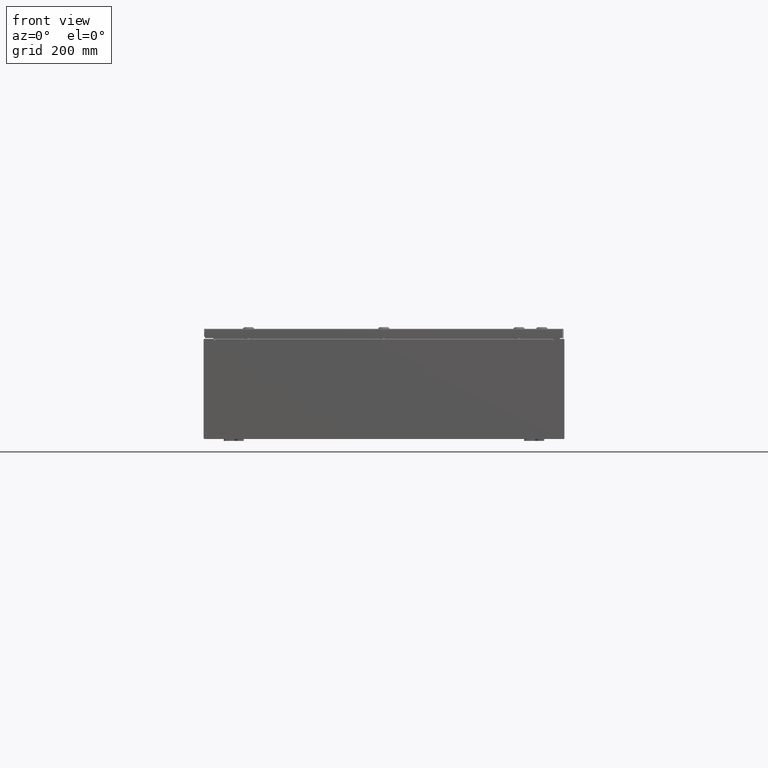
[diagram: clean part render]
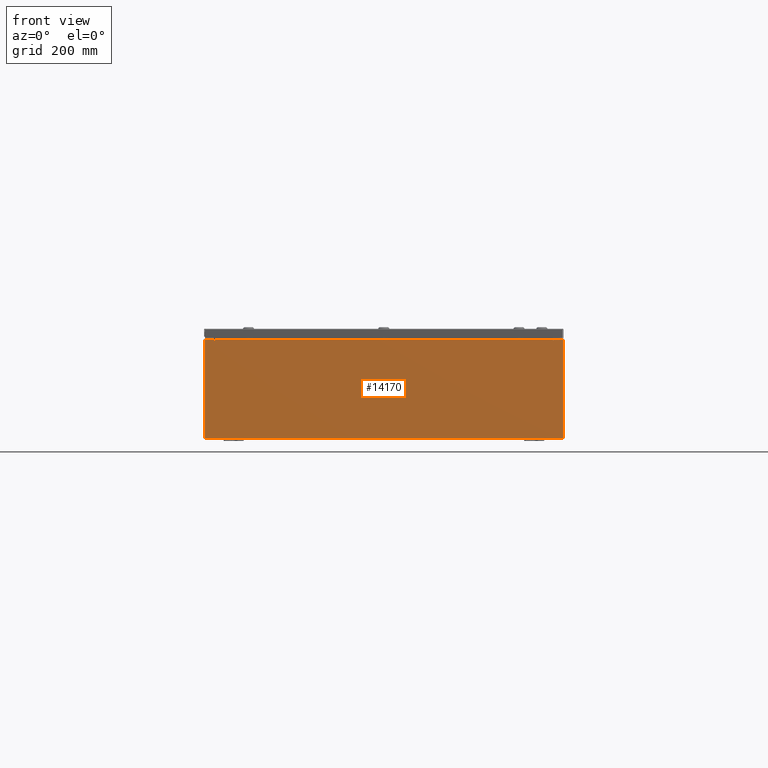
[diagram: same view with one face highlighted and labeled with its STEP entity id]
A machine part, front view. The second image highlights one B-rep face of the part: STEP entity #14170.
In plain terms, the highlighted planar face has unit normal (-0, 1, -0).
Its self-contained STEP definition (entity closure, byte-faithful):
#196 = CARTESIAN_POINT ( 'NONE',  ( -16.92454999999999600, 0.0000000000000000000, 4.925300000000000000 ) ) ;
#418 = VERTEX_POINT ( 'NONE', #46723 ) ;
#442 = EDGE_CURVE ( 'NONE', #418, #68996, #4440, .T. ) ;
#1141 = EDGE_CURVE ( 'NONE', #22360, #16746, #4373, .T. ) ;
#2148 = LINE ( 'NONE', #68562, #29015 ) ;
#2175 = ORIENTED_EDGE ( 'NONE', *, *, #47521, .F. ) ;
#3102 = AXIS2_PLACEMENT_3D ( 'NONE', #16738, #11930, #21178 ) ;
#4373 = CIRCLE ( 'NONE', #3102, 0.01867499999999949400 ) ;
#4412 = CARTESIAN_POINT ( 'NONE',  ( 0.0000000000000000000, 0.0000000000000000000, 0.0000000000000000000 ) ) ;
#4440 = LINE ( 'NONE', #37591, #45537 ) ;
#4967 = EDGE_LOOP ( 'NONE', ( #38242, #20354, #60056, #15276, #13453, #57739, #2175, #24042, #67678, #30942, #24993, #62576 ) ) ;
#5464 = VECTOR ( 'NONE', #32505, 39.37007874015748100 ) ;
#5617 = CARTESIAN_POINT ( 'NONE',  ( 16.92455000000000000, 0.0000000000000000000, 4.874950000000000100 ) ) ;
#5805 = CARTESIAN_POINT ( 'NONE',  ( -16.92454999999999600, -0.0000000000000000000, 0.0000000000000000000 ) ) ;
#7295 = LINE ( 'NONE', #42076, #32438 ) ;
#7668 = EDGE_CURVE ( 'NONE', #35125, #43861, #7295, .T. ) ;
#8298 = DIRECTION ( 'NONE',  ( 0.0000000000000000000, 0.0000000000000000000, -1.000000000000000000 ) ) ;
#9808 = DIRECTION ( 'NONE',  ( 0.0000000000000000000, -1.000000000000000000, 0.0000000000000000000 ) ) ;
#11022 = LINE ( 'NONE', #68180, #12706 ) ;
#11930 = DIRECTION ( 'NONE',  ( -0.0000000000000000000, 1.000000000000000000, -0.0000000000000000000 ) ) ;
#12706 = VECTOR ( 'NONE', #30911, 39.37007874015748100 ) ;
#12774 = DIRECTION ( 'NONE',  ( 1.000000000000000000, 0.0000000000000000000, 0.0000000000000000000 ) ) ;
#13236 = CARTESIAN_POINT ( 'NONE',  ( -16.90587499999999800, 0.0000000000000000000, 4.874950000000000100 ) ) ;
#13453 = ORIENTED_EDGE ( 'NONE', *, *, #51294, .F. ) ;
#13596 = LINE ( 'NONE', #49394, #42092 ) ;
#13656 = PLANE ( 'NONE',  #56847 ) ;
#14170 = ADVANCED_FACE ( 'NONE', ( #24764 ), #13656, .F. ) ;
#14286 = EDGE_CURVE ( 'NONE', #68996, #35125, #48201, .T. ) ;
#14391 = EDGE_CURVE ( 'NONE', #44476, #15829, #64008, .T. ) ;
#14919 = DIRECTION ( 'NONE',  ( 0.0000000000000000000, 0.0000000000000000000, -1.000000000000000000 ) ) ;
#15276 = ORIENTED_EDGE ( 'NONE', *, *, #33534, .T. ) ;
#15829 = VERTEX_POINT ( 'NONE', #196 ) ;
#16738 = CARTESIAN_POINT ( 'NONE',  ( 16.90587500000000200, 0.0000000000000000000, 4.874950000000000100 ) ) ;
#16746 = VERTEX_POINT ( 'NONE', #68339 ) ;
#18643 = DIRECTION ( 'NONE',  ( 0.0000000000000000000, 0.0000000000000000000, -1.000000000000000000 ) ) ;
#20354 = ORIENTED_EDGE ( 'NONE', *, *, #33643, .F. ) ;
#21077 = CARTESIAN_POINT ( 'NONE',  ( -17.92530000000000000, 0.0000000000000000000, 4.925300000000000000 ) ) ;
#21178 = DIRECTION ( 'NONE',  ( 0.0000000000000000000, 0.0000000000000000000, -1.000000000000000000 ) ) ;
#21397 = CIRCLE ( 'NONE', #58270, 0.01867499999999949400 ) ;
#21416 = VECTOR ( 'NONE', #69055, 39.37007874015748100 ) ;
#22360 = VERTEX_POINT ( 'NONE', #5617 ) ;
#22706 = VECTOR ( 'NONE', #8298, 39.37007874015748100 ) ;
#23059 = VECTOR ( 'NONE', #12774, 39.37007874015748100 ) ;
#23905 = CARTESIAN_POINT ( 'NONE',  ( -17.92530000000000000, 0.0000000000000000000, 4.925300000000000000 ) ) ;
#24042 = ORIENTED_EDGE ( 'NONE', *, *, #48235, .T. ) ;
#24383 = LINE ( 'NONE', #29608, #22706 ) ;
#24764 = FACE_OUTER_BOUND ( 'NONE', #4967, .T. ) ;
#24843 = EDGE_CURVE ( 'NONE', #45775, #68790, #24383, .T. ) ;
#24993 = ORIENTED_EDGE ( 'NONE', *, *, #7668, .T. ) ;
#29015 = VECTOR ( 'NONE', #31308, 39.37007874015748100 ) ;
#29608 = CARTESIAN_POINT ( 'NONE',  ( -16.88720000000000000, -0.0000000000000000000, 0.0000000000000000000 ) ) ;
#30911 = DIRECTION ( 'NONE',  ( 1.000000000000000000, 0.0000000000000000000, 0.0000000000000000000 ) ) ;
#30942 = ORIENTED_EDGE ( 'NONE', *, *, #14286, .T. ) ;
#31308 = DIRECTION ( 'NONE',  ( 0.0000000000000000000, 0.0000000000000000000, 1.000000000000000000 ) ) ;
#31807 = CARTESIAN_POINT ( 'NONE',  ( -17.92530000000000000, 0.0000000000000000000, -4.925300000000000000 ) ) ;
#32438 = VECTOR ( 'NONE', #57253, 39.37007874015748100 ) ;
#32505 = DIRECTION ( 'NONE',  ( 0.0000000000000000000, 0.0000000000000000000, 1.000000000000000000 ) ) ;
#33534 = EDGE_CURVE ( 'NONE', #45775, #51950, #39012, .T. ) ;
#33643 = EDGE_CURVE ( 'NONE', #68790, #44476, #21397, .T. ) ;
#34500 = LINE ( 'NONE', #21077, #48697 ) ;
#35125 = VERTEX_POINT ( 'NONE', #47374 ) ;
#35242 = VERTEX_POINT ( 'NONE', #42951 ) ;
#36952 = CARTESIAN_POINT ( 'NONE',  ( 17.92530000000000000, 0.0000000000000000000, -4.925300000000000000 ) ) ;
#37591 = CARTESIAN_POINT ( 'NONE',  ( 17.92530000000000000, 0.0000000000000000000, 4.925300000000000000 ) ) ;
#38242 = ORIENTED_EDGE ( 'NONE', *, *, #14391, .F. ) ;
#39012 = LINE ( 'NONE', #39489, #23059 ) ;
#39489 = CARTESIAN_POINT ( 'NONE',  ( -16.88720000000000000, -7.171100983368691200E-016, 4.912300000000000100 ) ) ;
#42076 = CARTESIAN_POINT ( 'NONE',  ( -17.92530000000000000, 0.0000000000000000000, 4.925300000000000000 ) ) ;
#42092 = VECTOR ( 'NONE', #54723, 39.37007874015748100 ) ;
#42951 = CARTESIAN_POINT ( 'NONE',  ( 16.92455000000000000, 0.0000000000000000000, 4.925300000000000000 ) ) ;
#43861 = VERTEX_POINT ( 'NONE', #23905 ) ;
#44476 = VERTEX_POINT ( 'NONE', #48647 ) ;
#45537 = VECTOR ( 'NONE', #14919, 39.37007874015748100 ) ;
#45775 = VERTEX_POINT ( 'NONE', #51493 ) ;
#46723 = CARTESIAN_POINT ( 'NONE',  ( 17.92530000000000000, 0.0000000000000000000, 4.925300000000000000 ) ) ;
#47275 = DIRECTION ( 'NONE',  ( 0.0000000000000000000, -0.0000000000000000000, -1.000000000000000000 ) ) ;
#47374 = CARTESIAN_POINT ( 'NONE',  ( -17.92530000000000000, 0.0000000000000000000, -4.925300000000000000 ) ) ;
#47521 = EDGE_CURVE ( 'NONE', #35242, #22360, #13596, .T. ) ;
#47986 = DIRECTION ( 'NONE',  ( 1.000000000000000000, 0.0000000000000000000, 0.0000000000000000000 ) ) ;
#48025 = EDGE_CURVE ( 'NONE', #43861, #15829, #11022, .T. ) ;
#48201 = LINE ( 'NONE', #31807, #21416 ) ;
#48235 = EDGE_CURVE ( 'NONE', #35242, #418, #34500, .T. ) ;
#48647 = CARTESIAN_POINT ( 'NONE',  ( -16.92454999999999600, 0.0000000000000000000, 4.874950000000000100 ) ) ;
#48697 = VECTOR ( 'NONE', #47986, 39.37007874015748100 ) ;
#49307 = CARTESIAN_POINT ( 'NONE',  ( 16.88720000000000000, 0.0000000000000000000, 4.912300000000000100 ) ) ;
#49394 = CARTESIAN_POINT ( 'NONE',  ( 16.92454999999957700, -0.0000000000000000000, -1.469244821010341400E-012 ) ) ;
#50657 = DIRECTION ( 'NONE',  ( -0.0000000000000000000, 1.000000000000000000, -0.0000000000000000000 ) ) ;
#51294 = EDGE_CURVE ( 'NONE', #16746, #51950, #2148, .T. ) ;
#51412 = CARTESIAN_POINT ( 'NONE',  ( -16.88720000000000000, -0.0000000000000000000, 4.874950000000000100 ) ) ;
#51493 = CARTESIAN_POINT ( 'NONE',  ( -16.88720000000000000, -7.171100983368691200E-016, 4.912300000000000100 ) ) ;
#51950 = VERTEX_POINT ( 'NONE', #49307 ) ;
#54723 = DIRECTION ( 'NONE',  ( -8.681145560800009800E-014, 0.0000000000000000000, -1.000000000000000000 ) ) ;
#56847 = AXIS2_PLACEMENT_3D ( 'NONE', #4412, #9808, #47275 ) ;
#57253 = DIRECTION ( 'NONE',  ( -0.0000000000000000000, -0.0000000000000000000, 1.000000000000000000 ) ) ;
#57739 = ORIENTED_EDGE ( 'NONE', *, *, #1141, .F. ) ;
#58270 = AXIS2_PLACEMENT_3D ( 'NONE', #13236, #50657, #18643 ) ;
#60056 = ORIENTED_EDGE ( 'NONE', *, *, #24843, .F. ) ;
#62576 = ORIENTED_EDGE ( 'NONE', *, *, #48025, .T. ) ;
#64008 = LINE ( 'NONE', #5805, #5464 ) ;
#67678 = ORIENTED_EDGE ( 'NONE', *, *, #442, .T. ) ;
#68180 = CARTESIAN_POINT ( 'NONE',  ( -17.92530000000000000, 0.0000000000000000000, 4.925300000000000000 ) ) ;
#68339 = CARTESIAN_POINT ( 'NONE',  ( 16.88720000000000000, 0.0000000000000000000, 4.874950000000000100 ) ) ;
#68562 = CARTESIAN_POINT ( 'NONE',  ( 16.88720000000000000, 0.0000000000000000000, 0.0000000000000000000 ) ) ;
#68790 = VERTEX_POINT ( 'NONE', #51412 ) ;
#68996 = VERTEX_POINT ( 'NONE', #36952 ) ;
#69055 = DIRECTION ( 'NONE',  ( -1.000000000000000000, -0.0000000000000000000, -0.0000000000000000000 ) ) ;